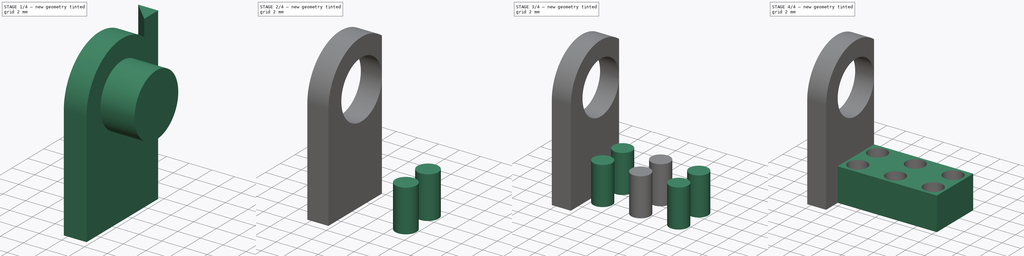
[diagram: build sequence overview — one tinted view per stage of 4, left to right]
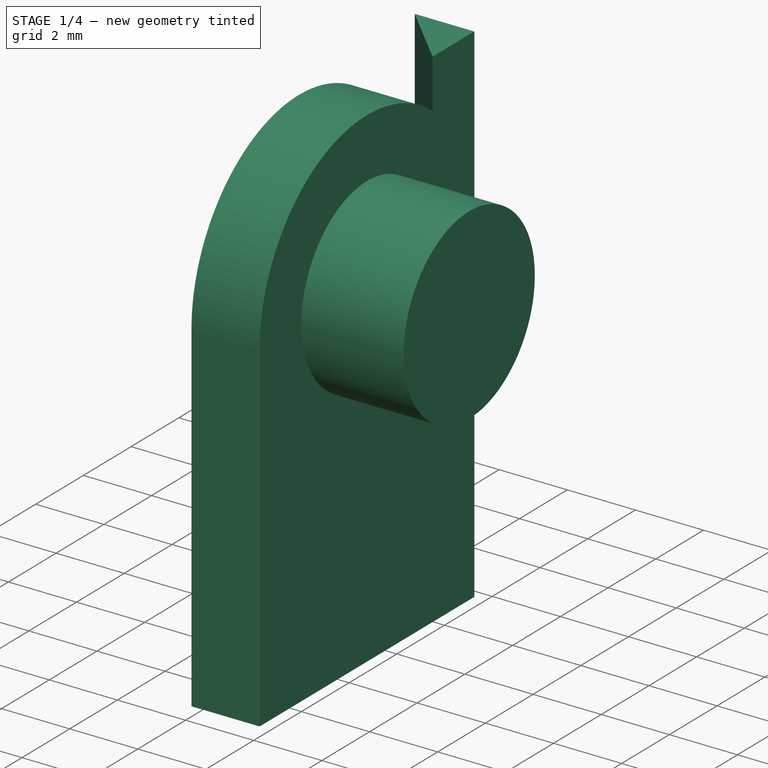
[diagram: stage 1 of 4 — iso view after this stage's code; geometry added in this stage tinted green]
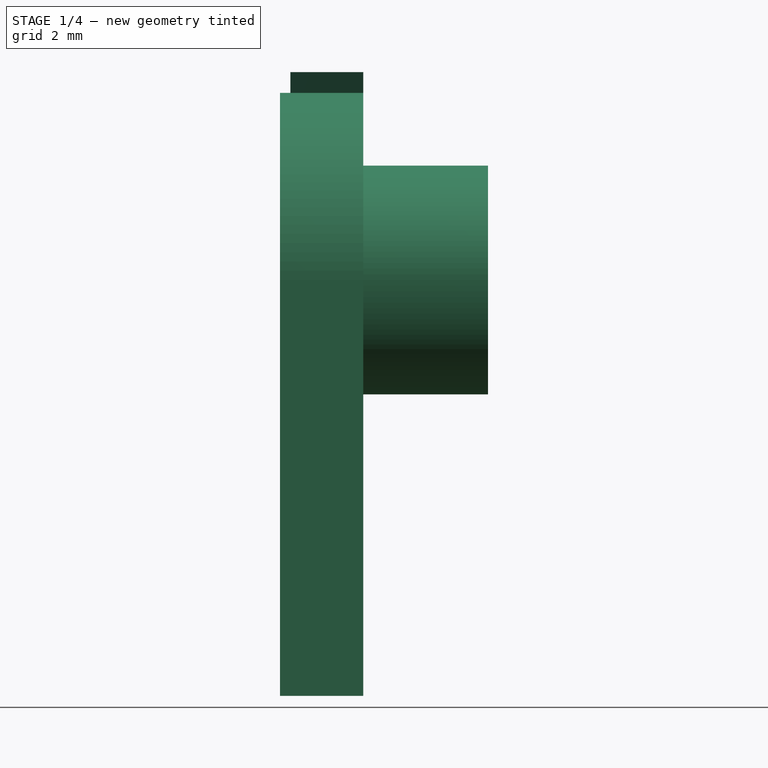
[diagram: stage 1 of 4 — front view after this stage's code; geometry added in this stage tinted green]
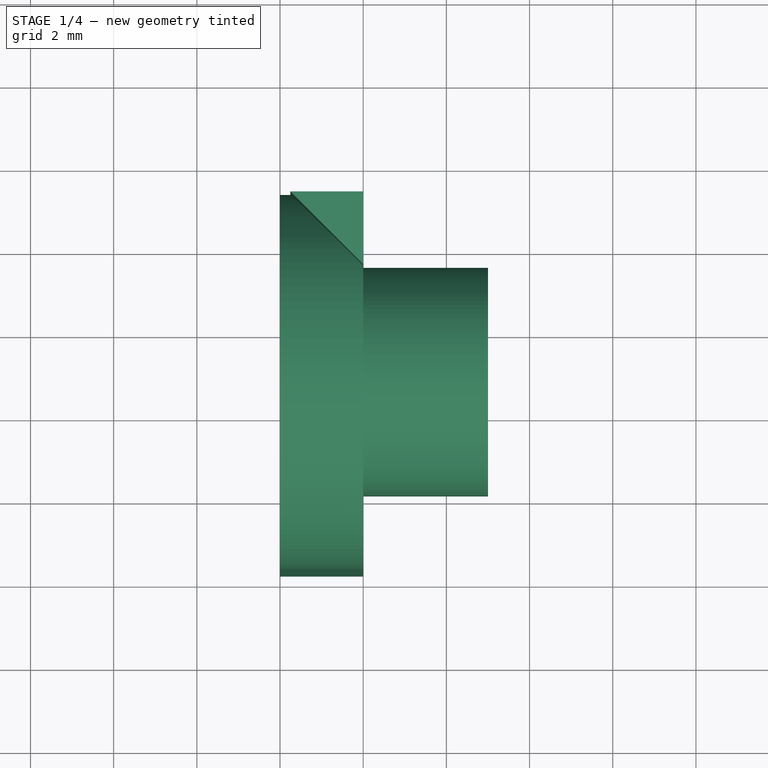
[diagram: stage 1 of 4 — top view after this stage's code; geometry added in this stage tinted green]
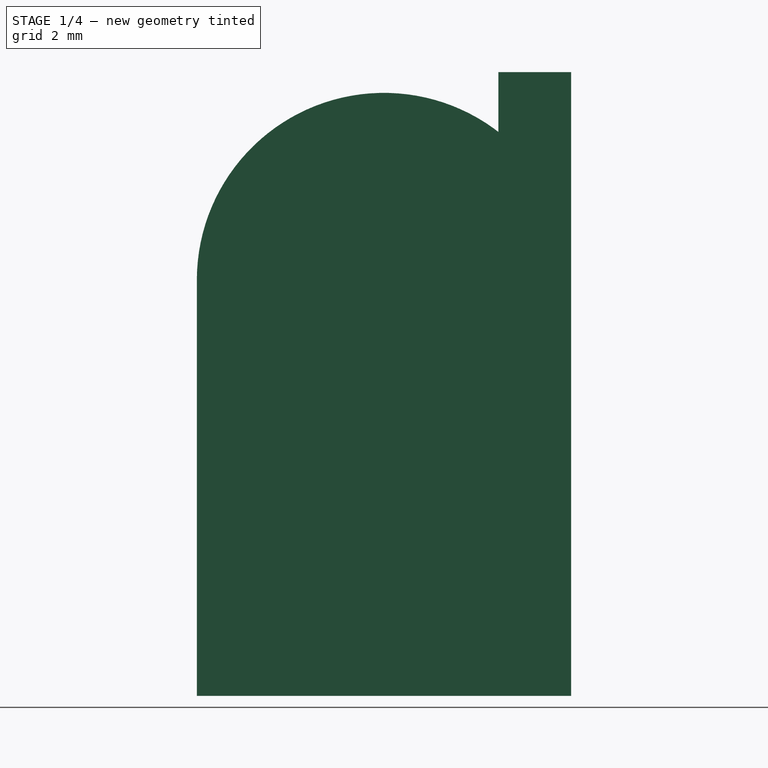
[diagram: stage 1 of 4 — right view after this stage's code; geometry added in this stage tinted green]
FCSTD DOCUMENT  (FreeCAD 0.14R3702 (Git))
Label: scaleauto-d
License: CC-BY 3.0
LicenseURL: http://creativecommons.org/licenses/by/3.0/
objects: Sketcher::SketchObject×7, Part::Extrusion×7, Part::Cut×3, Part::MultiFuse×1, Part::Compound×1
note: 19 computed .brp shape members not serialized (recipe doc carries the construction recipe); baked Part::Feature solids carry a one-line shape summary decoded from their .brp

FEATURE [Sketcher::SketchObject] Sketch004
  Placement = pos=(-2,0,0) rot=(0.57735,0.57735,0.57735;2.0944rad)
  sketch-geometry (4):
    g0: LineSegment StartX=-1.75 StartY=0 StartZ=0 EndX=7.25 EndY=0 EndZ=0
    g1: LineSegment StartX=7.25 StartY=0 StartZ=0 EndX=7.25 EndY=10 EndZ=0
    g2: LineSegment StartX=-1.75 StartY=0 StartZ=0 EndX=-1.75 EndY=10 EndZ=0
    g3: ArcOfCircle CenterX=2.75 CenterY=10 CenterZ=0 NormalX=0 NormalY=0 NormalZ=1 Radius=4.5 StartAngle=0 EndAngle=3.14159
  constraints (6):
    c: Horizontal(g0)
    c: Coincident(g1,g0)
    c: Vertical(g1)
    c: Coincident(g2,g0)
    c: Vertical(g2)
    c: Coincident(g3,g2)
FEATURE [Part::Extrusion] Extrude004
  Base = -> Sketch004
  Dir = (2,0,0)
  Solid = true
FEATURE [Sketcher::SketchObject] Sketch005
  sketch-geometry (3):
    g0: LineSegment StartX=0 StartY=5.5 StartZ=0 EndX=-1.75 EndY=7.25 EndZ=0
    g1: LineSegment StartX=-1.75 StartY=7.25 StartZ=0 EndX=0 EndY=7.25 EndZ=0
    g2: LineSegment StartX=0 StartY=7.25 StartZ=0 EndX=0 EndY=5.5 EndZ=0
  constraints (6):
    c: PointOnObject(g0,g-2)
    c: Coincident(g1,g0)
    c: PointOnObject(g1,g-2)
    c: Horizontal(g1)
    c: Coincident(g2,g1)
    c: Coincident(g2,g0)
FEATURE [Part::Extrusion] Extrude005
  Base = -> Sketch005
  Dir = (0,0,15)
  Solid = true
FEATURE [Sketcher::SketchObject] Sketch006
  Placement = pos=(-2,0,0) rot=(0.57735,0.57735,0.57735;2.0944rad)
  sketch-geometry (1):
    g0: Circle CenterX=2.75 CenterY=10 CenterZ=0 NormalX=0 NormalY=0 NormalZ=1 Radius=2.75
FEATURE [Part::Extrusion] Extrude006
  Base = -> Sketch006
  Dir = (5,0,0)
  Solid = true
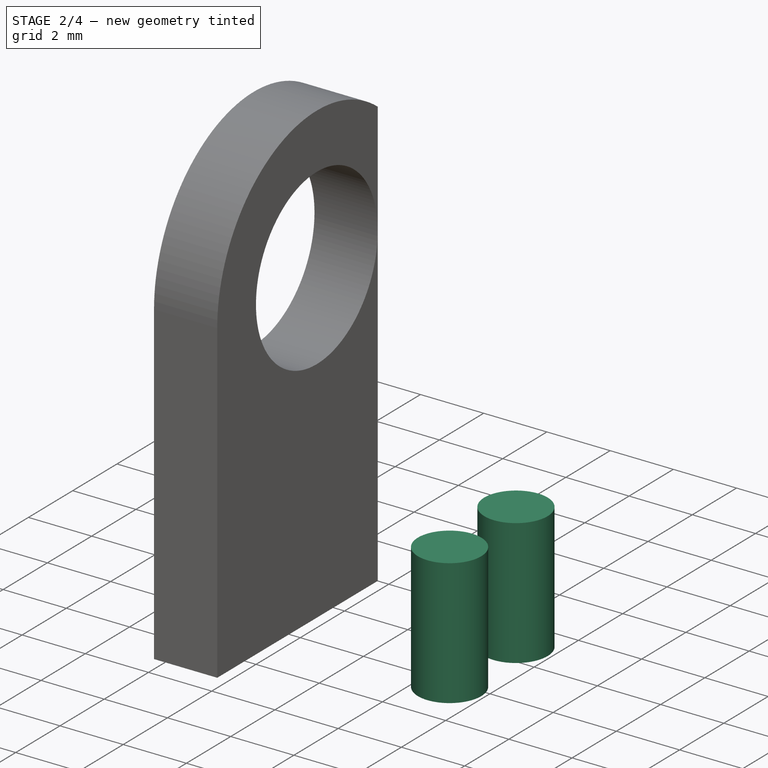
[diagram: stage 2 of 4 — iso view after this stage's code; geometry added in this stage tinted green]
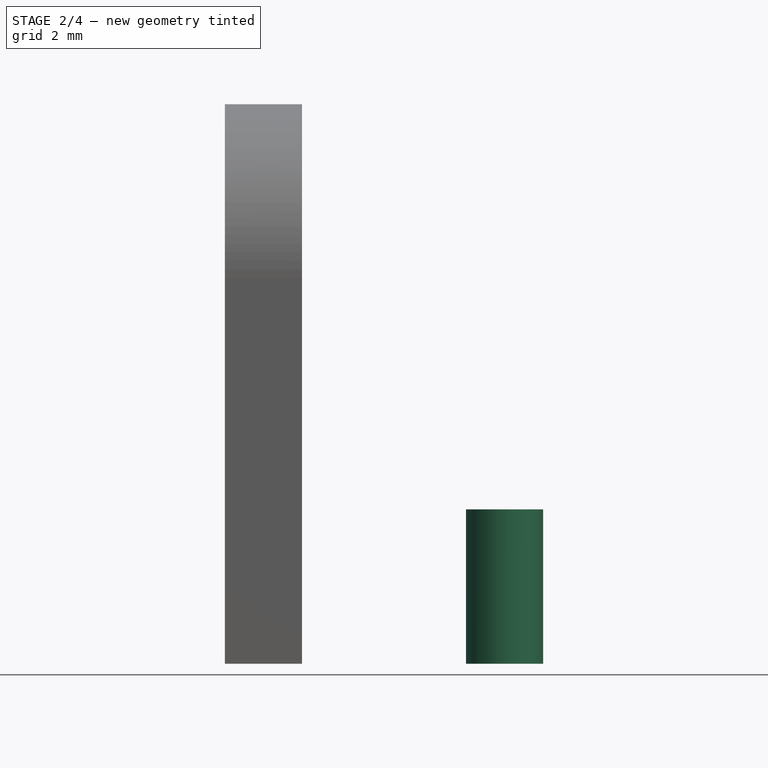
[diagram: stage 2 of 4 — front view after this stage's code; geometry added in this stage tinted green]
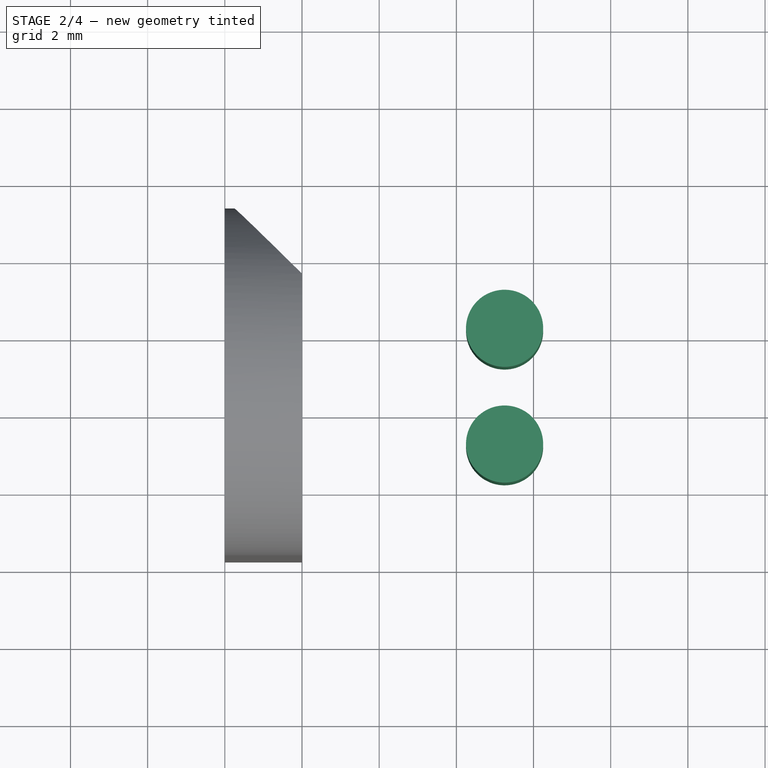
[diagram: stage 2 of 4 — top view after this stage's code; geometry added in this stage tinted green]
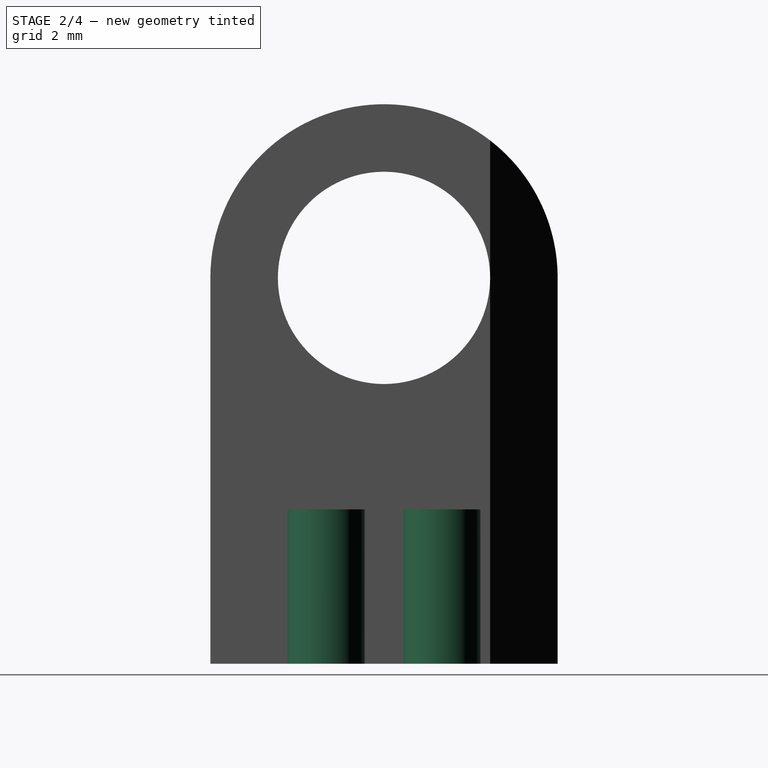
[diagram: stage 2 of 4 — right view after this stage's code; geometry added in this stage tinted green]
FEATURE [Part::Extrusion] Extrude003
  Base = -> Sketch002
  Dir = (0,0,4)
  Solid = true
FEATURE [Part::Cut] Cut001
  Base = -> Extrude004
  Tool = -> Extrude005
FEATURE [Part::Cut] Cut002
  Base = -> Cut001
  Tool = -> Extrude006
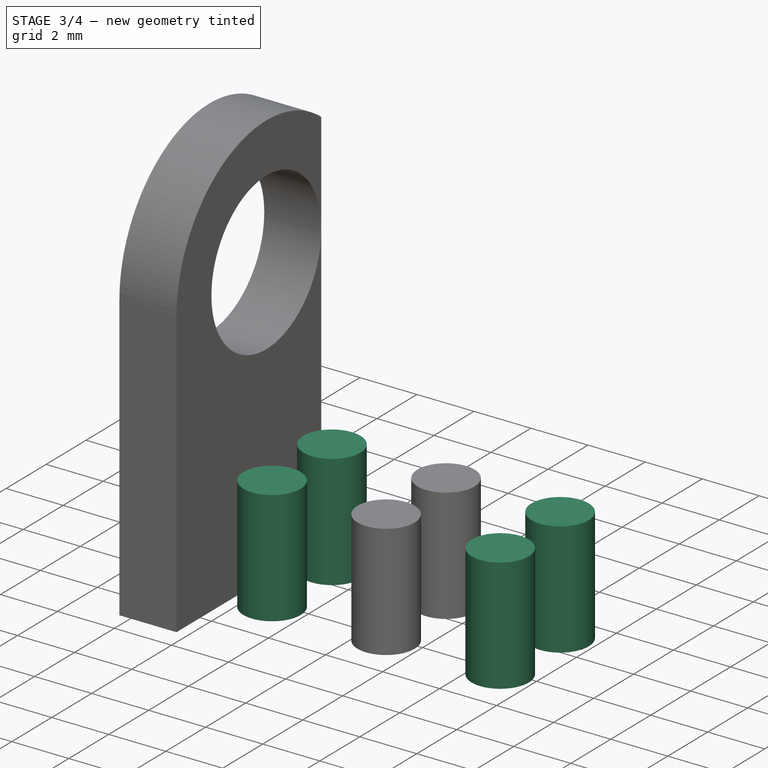
[diagram: stage 3 of 4 — iso view after this stage's code; geometry added in this stage tinted green]
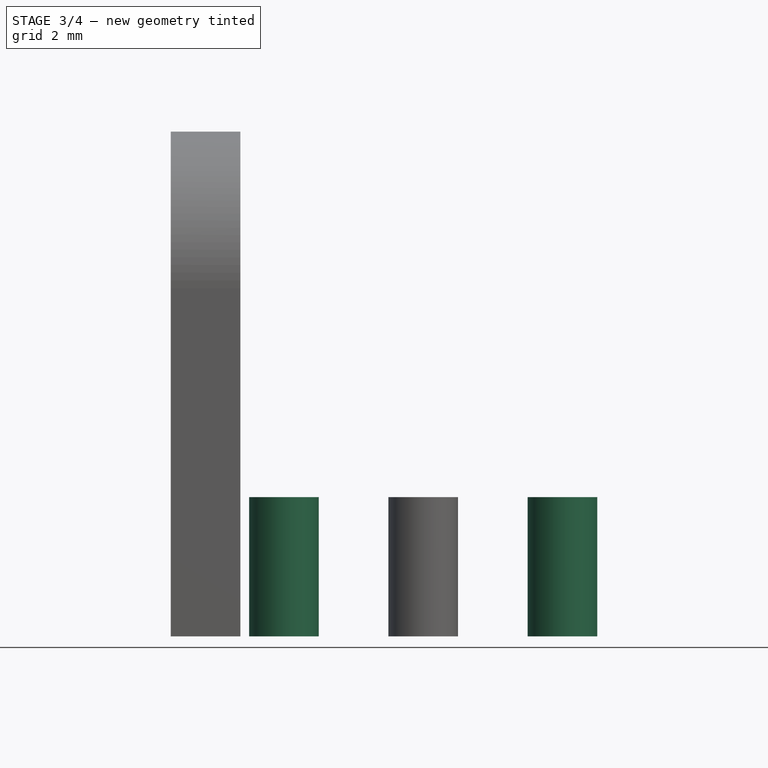
[diagram: stage 3 of 4 — front view after this stage's code; geometry added in this stage tinted green]
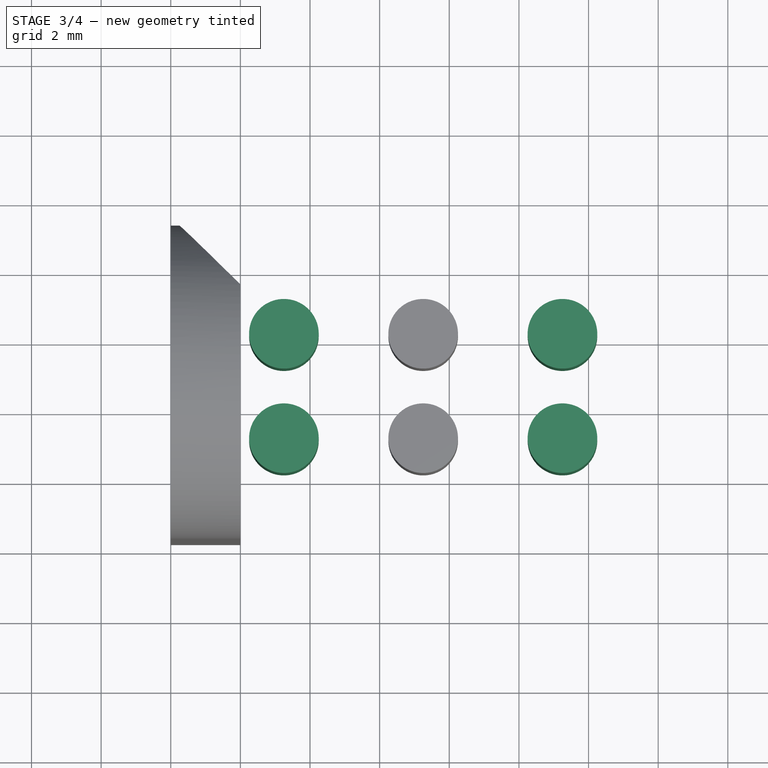
[diagram: stage 3 of 4 — top view after this stage's code; geometry added in this stage tinted green]
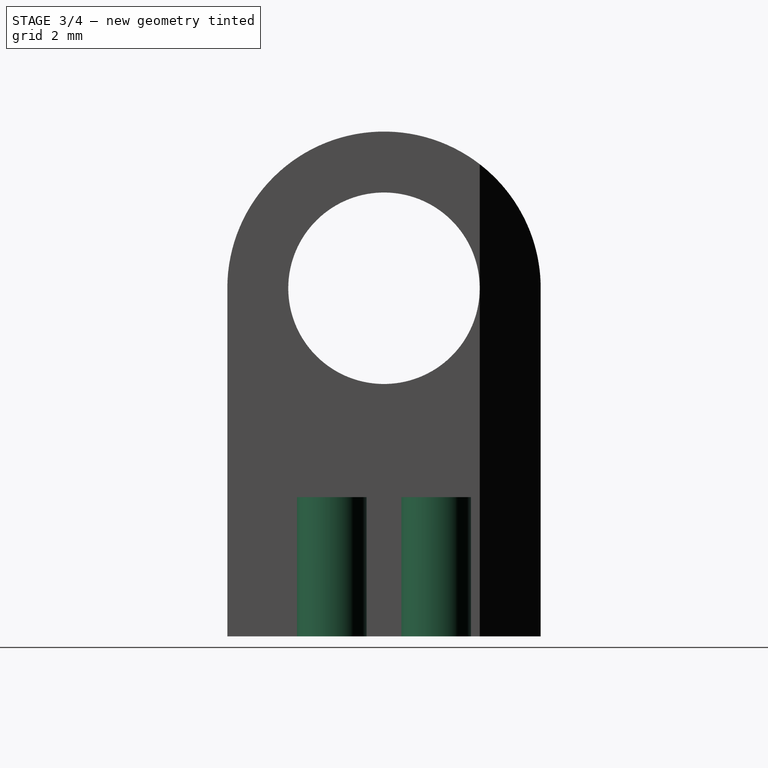
[diagram: stage 3 of 4 — right view after this stage's code; geometry added in this stage tinted green]
FEATURE [Part::Extrusion] Extrude001
  Base = -> Sketch001
  Dir = (0,0,4)
  Solid = true
FEATURE [Part::Extrusion] Extrude002
  Base = -> Sketch003
  Dir = (0,0,4)
  Solid = true
FEATURE [Part::MultiFuse] Fusion
  Shapes = -> [Extrude001,Extrude002,Extrude003]
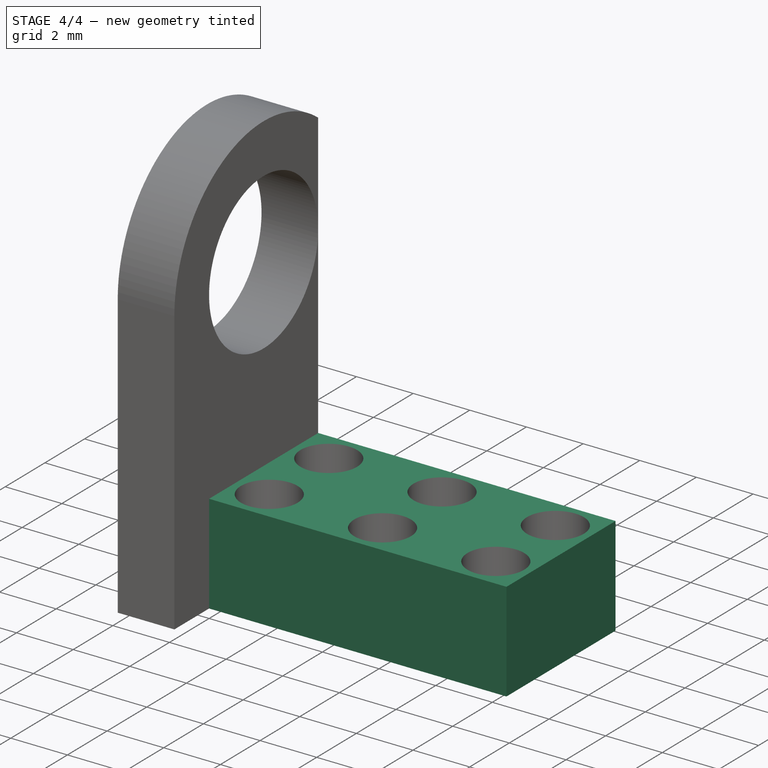
[diagram: stage 4 of 4 — iso view after this stage's code; geometry added in this stage tinted green]
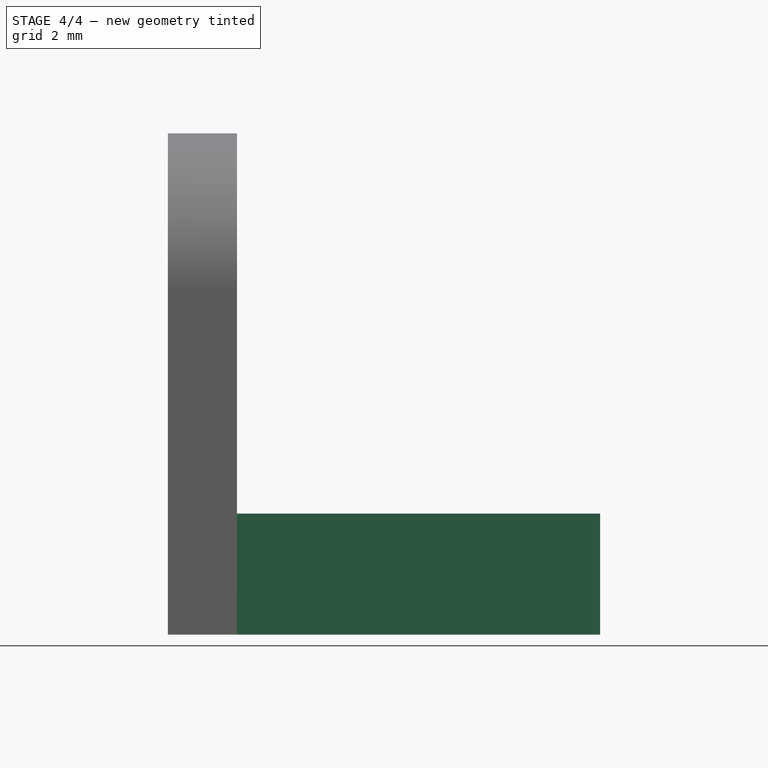
[diagram: stage 4 of 4 — front view after this stage's code; geometry added in this stage tinted green]
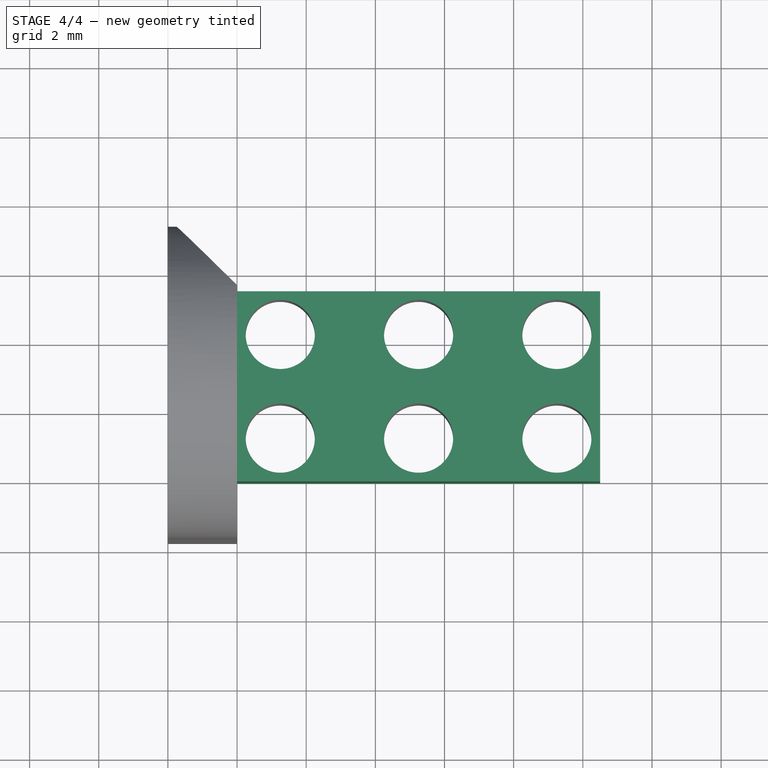
[diagram: stage 4 of 4 — top view after this stage's code; geometry added in this stage tinted green]
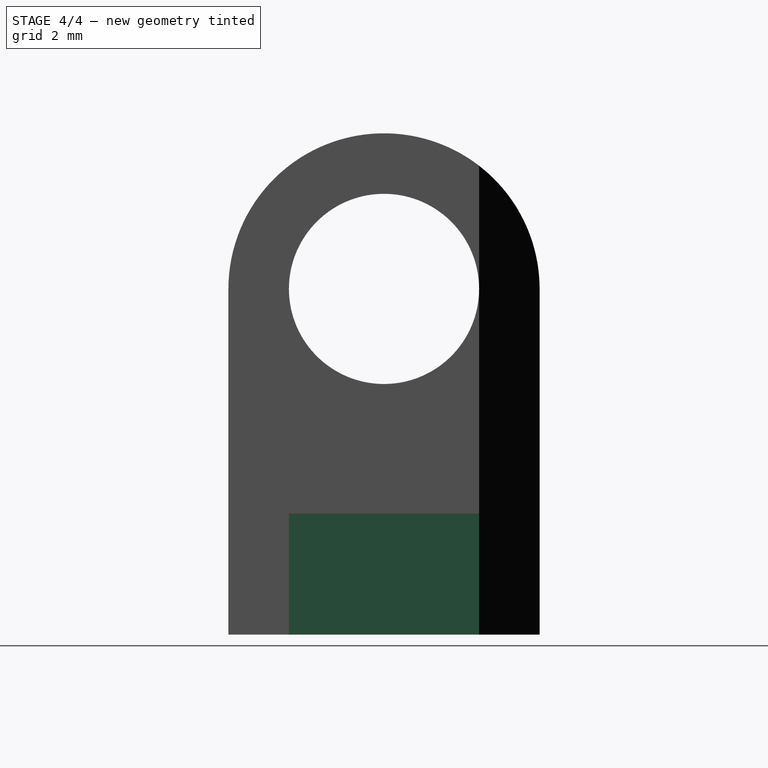
[diagram: stage 4 of 4 — right view after this stage's code; geometry added in this stage tinted green]
FEATURE [Sketcher::SketchObject] Sketch
  sketch-geometry (4):
    g0: LineSegment StartX=0 StartY=0 StartZ=0 EndX=10.5 EndY=0 EndZ=0
    g1: LineSegment StartX=10.5 StartY=0 StartZ=0 EndX=10.5 EndY=5.5 EndZ=0
    g2: LineSegment StartX=10.5 StartY=5.5 StartZ=0 EndX=0 EndY=5.5 EndZ=0
    g3: LineSegment StartX=0 StartY=5.5 StartZ=0 EndX=0 EndY=0 EndZ=0
  constraints (9):
    c: Coincident(g0,g1)
    c: Coincident(g1,g2)
    c: Coincident(g2,g3)
    c: Coincident(g3,g0)
    c: Horizontal(g0)
    c: Horizontal(g2)
    c: Vertical(g1)
    c: Vertical(g3)
    c: Coincident(g0,g-1)
FEATURE [Sketcher::SketchObject] Sketch001
  Placement = pos=(0.25,0.25,0) rot=(0,0,1;0rad)
  sketch-geometry (2):
    g0: Circle CenterX=1 CenterY=1 CenterZ=0 NormalX=0 NormalY=0 NormalZ=1 Radius=1
    g1: Circle CenterX=1 CenterY=4 CenterZ=0 NormalX=0 NormalY=0 NormalZ=1 Radius=1
  constraints (1):
    c: Tangent(g0,g-1)
FEATURE [Sketcher::SketchObject] Sketch002
  Placement = pos=(4.25,0.25,0) rot=(0,0,1;0rad)
  sketch-geometry (2):
    g0: Circle CenterX=1 CenterY=1 CenterZ=0 NormalX=0 NormalY=0 NormalZ=1 Radius=1
    g1: Circle CenterX=1 CenterY=4 CenterZ=0 NormalX=0 NormalY=0 NormalZ=1 Radius=1
  constraints (1):
    c: Tangent(g0,g-1)
FEATURE [Sketcher::SketchObject] Sketch003
  Placement = pos=(8.25,0.25,0) rot=(0,0,1;0rad)
  sketch-geometry (2):
    g0: Circle CenterX=1 CenterY=1 CenterZ=0 NormalX=0 NormalY=0 NormalZ=1 Radius=1
    g1: Circle CenterX=1 CenterY=4 CenterZ=0 NormalX=0 NormalY=0 NormalZ=1 Radius=1
  constraints (1):
    c: Tangent(g0,g-1)
FEATURE [Part::Extrusion] Extrude
  Base = -> Sketch
  Dir = (0,0,3.5)
  Solid = true
FEATURE [Part::Cut] Cut
  Base = -> Extrude
  Tool = -> Fusion
FEATURE [Part::Compound] Compound  label="SC8000-D"
  Links = -> [Cut,Cut002]
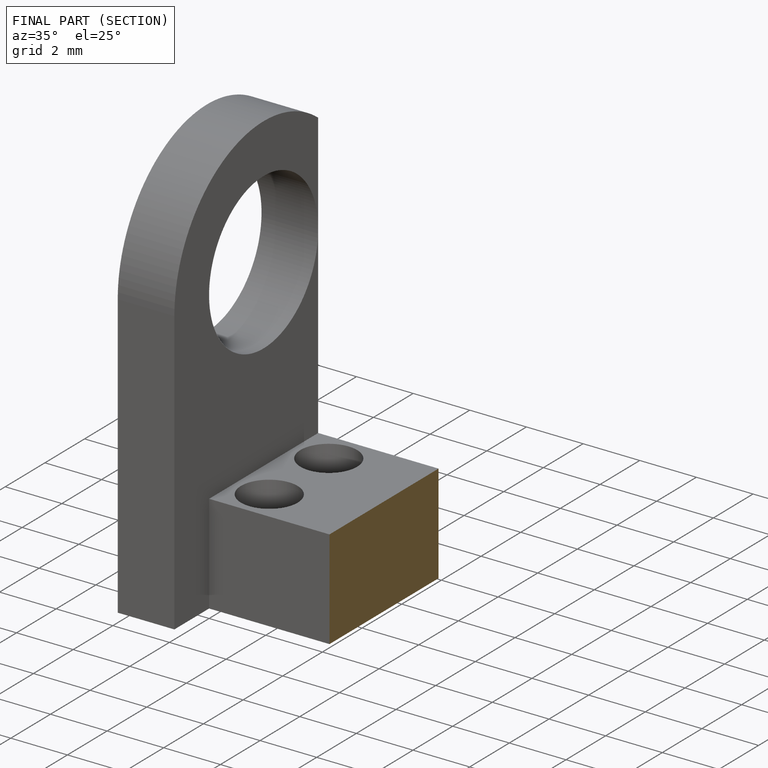
[diagram: finished part — half-section view (interior)]
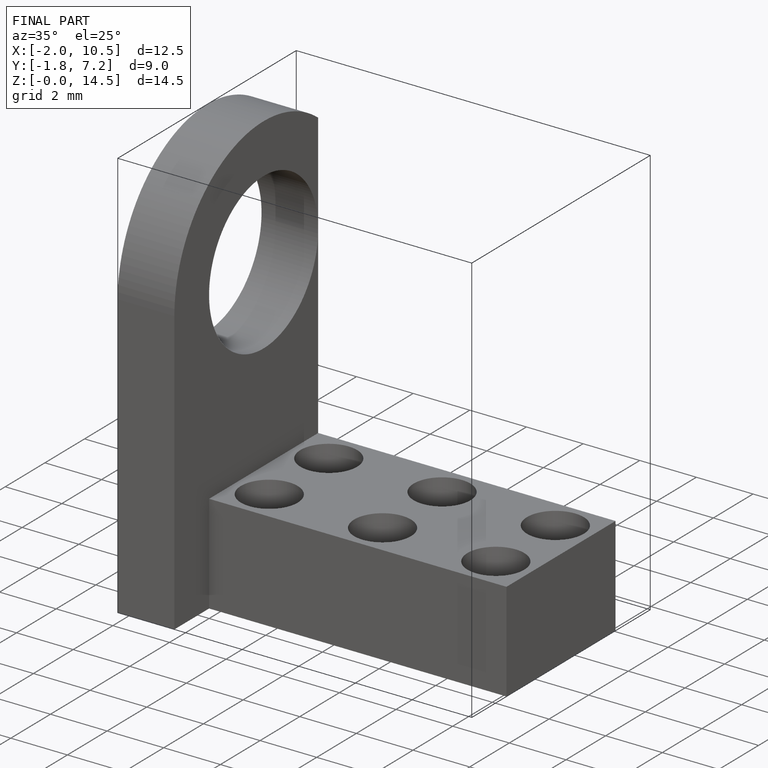
[diagram: finished part — iso view with bounding-box wireframe]
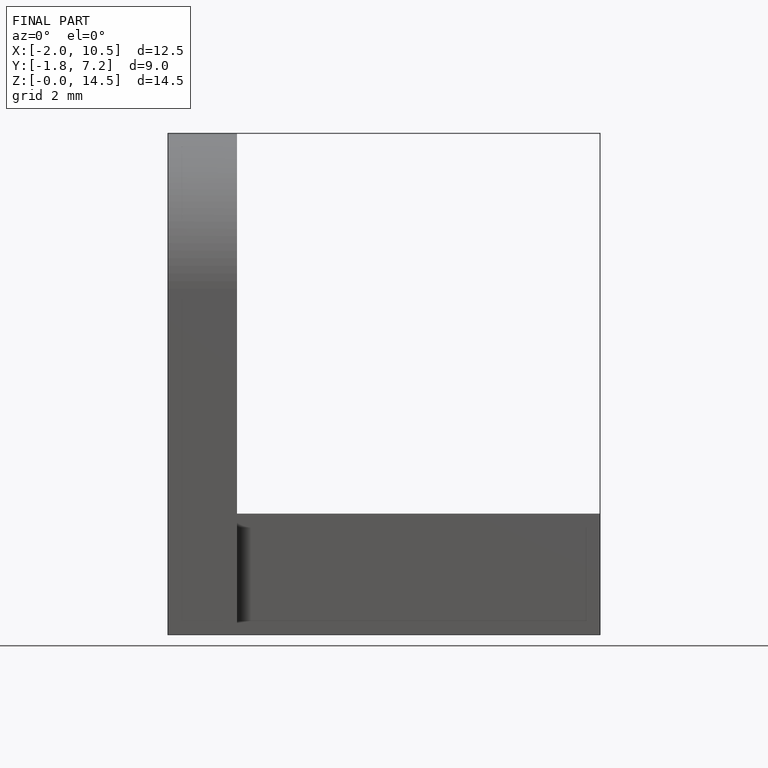
[diagram: finished part — front view with bounding-box wireframe]
